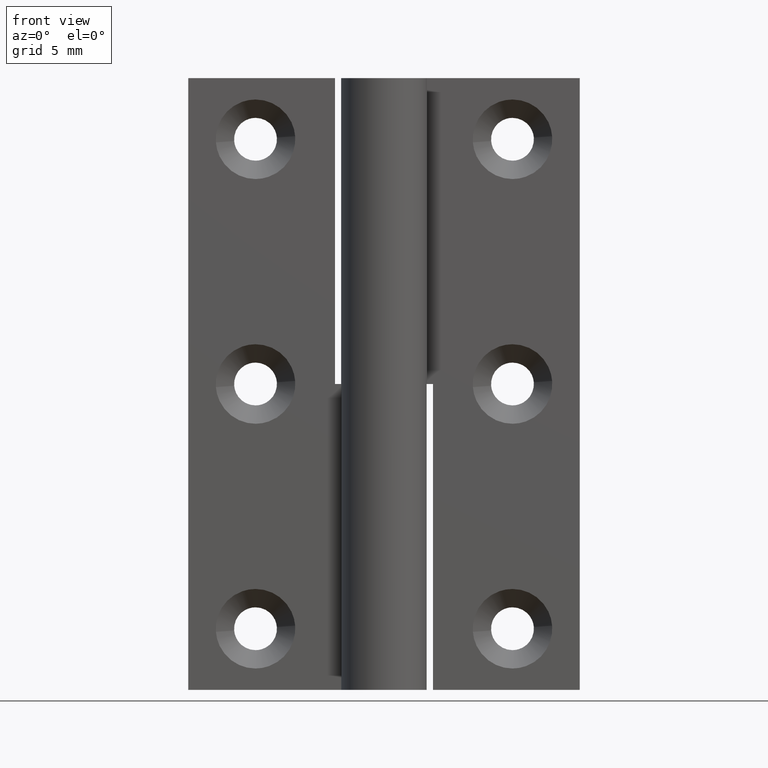
[diagram: clean part render]
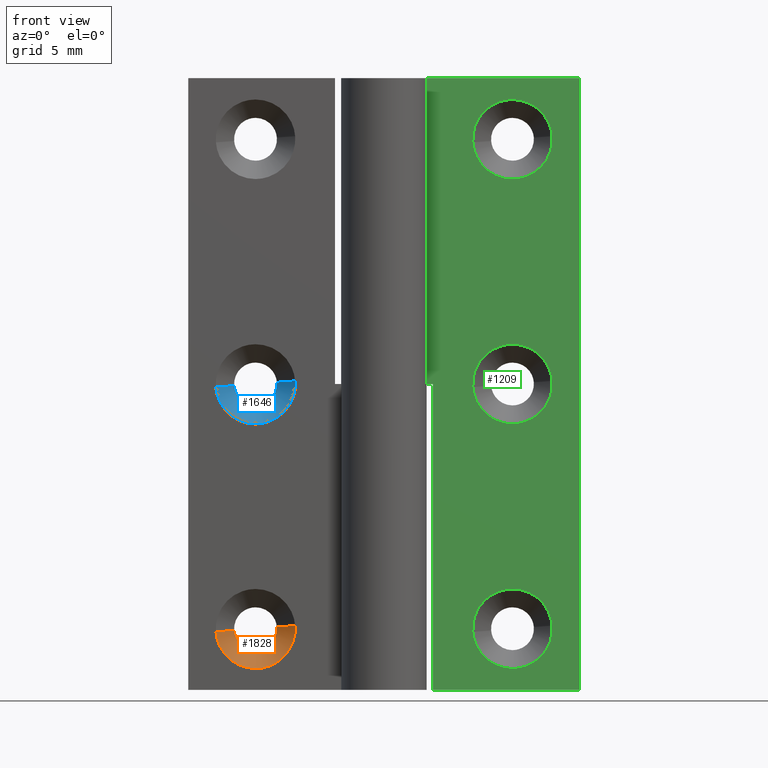
[diagram: same view with three faces highlighted in distinct colors, each labeled with its STEP entity id]
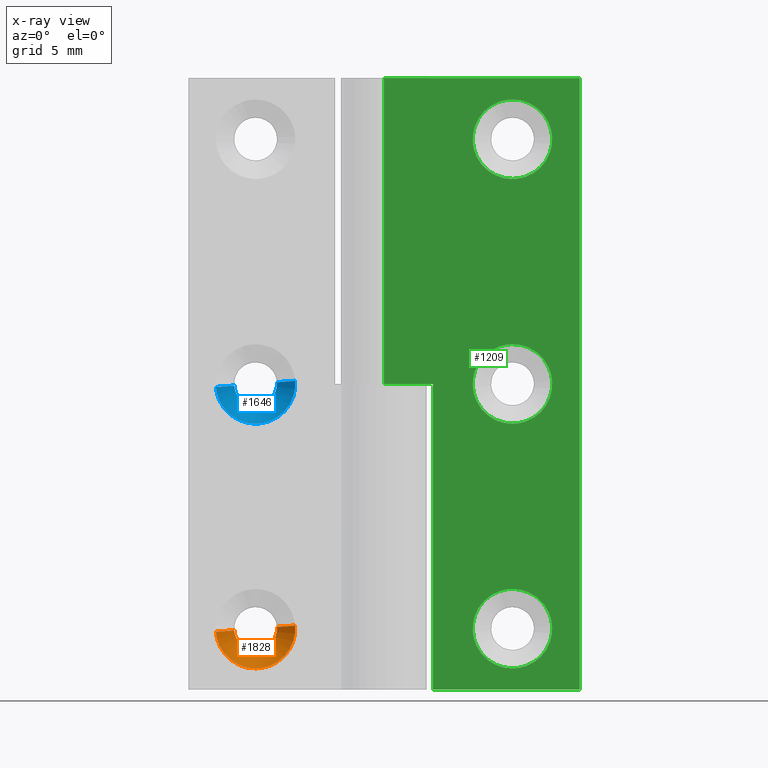
[diagram: x-ray of the same camera — body ghosted, the three highlighted faces saturated]
A machine part, front view with three faces highlighted in distinct colors.
The next image is the same camera in x-ray (body ghosted, the three faces saturated) — at least one of them is partly hidden behind the body in this view.
Their STEP definitions:

[orange] entity #1828 — the highlighted face is a freeform B-spline surface patch.
#1667=CARTESIAN_POINT('',(-7.260018665359869,1.999999999981076,5.254992061261848));
#1668=VERTEX_POINT('',#1667);
#1682=CARTESIAN_POINT('',(-13.739981334640129,1.999999999981076,4.745007938738153));
#1683=VERTEX_POINT('',#1682);
#1699=CARTESIAN_POINT('',(-12.244605334050179,3.499999999957236,4.862696582149795));
#1700=VERTEX_POINT('',#1699);
#1701=CARTESIAN_POINT('',(-12.244605334050179,3.499999999957236,4.862696582149795));
#1702=CARTESIAN_POINT('',(-13.739981334640129,1.999999999981076,4.745007938738153));
#1703=QUASI_UNIFORM_CURVE('',1,(#1701,#1702),.UNSPECIFIED.,.F.,.U.);
#1704=EDGE_CURVE('',#1700,#1683,#1703,.T.);
#1723=CARTESIAN_POINT('',(-8.755394665949822,3.499999999957236,5.137303417850206));
#1724=VERTEX_POINT('',#1723);
#1738=CARTESIAN_POINT('',(-8.755394665949822,3.499999999957236,5.137303417850206));
#1739=CARTESIAN_POINT('',(-7.260018665359869,1.999999999981076,5.254992061261848));
#1740=QUASI_UNIFORM_CURVE('',1,(#1738,#1739),.UNSPECIFIED.,.F.,.U.);
#1741=EDGE_CURVE('',#1724,#1668,#1740,.T.);
#1746=CARTESIAN_POINT('',(-12.207220934017981,3.537500000000001,4.865638798566065));
#1747=CARTESIAN_POINT('',(-12.072859732584046,3.537500000000000,3.158417864548084));
#1748=CARTESIAN_POINT('',(-10.365638798566060,3.537500000000001,3.292779065982019));
#1749=CARTESIAN_POINT('',(-8.658417864548085,3.537500000000000,3.427140267415955));
#1750=CARTESIAN_POINT('',(-8.792779065982019,3.537500000000001,5.134361201433936));
#1751=CARTESIAN_POINT('',(-13.778300344648031,1.961562500000000,4.741992167392462));
#1752=CARTESIAN_POINT('',(-13.520292512040498,1.961562500000000,1.463691822744428));
#1753=CARTESIAN_POINT('',(-10.241992167392461,1.961562500000000,1.721699655351965));
#1754=CARTESIAN_POINT('',(-6.963691822744428,1.961562500000000,1.979707487959503));
#1755=CARTESIAN_POINT('',(-7.221699655351966,1.961562500000000,5.258007832607538));
#1763=(BOUNDED_SURFACE()B_SPLINE_SURFACE(2,1,((#1746,#1751),(#1747,#1752),(#1748,#1753),(#1749,#1754),(#1750,#1755)),.UNSPECIFIED.,.F.,.F.,.U.)B_SPLINE_SURFACE_WITH_KNOTS((3,2,3),(2,2),(0.0,5.448461646065104,10.896923292130211),(0.0,2.228712185952353),.UNSPECIFIED.)GEOMETRIC_REPRESENTATION_ITEM()RATIONAL_B_SPLINE_SURFACE(((1.0,1.0),(0.707106781186548,0.707106781186548),(1.0,1.0),(0.707106781186548,0.707106781186548),(1.0,1.0)))REPRESENTATION_ITEM('')SURFACE());
#1764=CARTESIAN_POINT('',(-10.500000000000000,2.0,1.750000000000000));
#1765=VERTEX_POINT('',#1764);
#1766=CARTESIAN_POINT('',(-7.260018665359869,1.999999999981076,5.254992061261848));
#1767=CARTESIAN_POINT('',(-7.250000000000001,2.000000000000000,5.127692847920464));
#1768=CARTESIAN_POINT('',(-7.250000000000001,2.0,5.0));
#1769=CARTESIAN_POINT('',(-7.250000000000000,2.0,1.750000000000000));
#1770=CARTESIAN_POINT('',(-10.500000000000000,2.0,1.750000000000000));
#1778=(BOUNDED_CURVE()B_SPLINE_CURVE(2,(#1766,#1767,#1768,#1769,#1770),.UNSPECIFIED.,.F.,.U.)B_SPLINE_CURVE_WITH_KNOTS((3,2,3),(0.236331300617438,0.250000000000000,0.500000000000000),.UNSPECIFIED.)CURVE()GEOMETRIC_REPRESENTATION_ITEM()RATIONAL_B_SPLINE_CURVE((0.969723356139824,0.983986122563391,1.0,0.707106781186547,1.0))REPRESENTATION_ITEM(''));
#1779=EDGE_CURVE('',#1668,#1765,#1778,.T.);
#1780=ORIENTED_EDGE('',*,*,#1779,.F.);
#1781=ORIENTED_EDGE('',*,*,#1741,.F.);
#1782=CARTESIAN_POINT('',(-10.500000000000000,3.500000000000000,3.250000000000000));
#1783=VERTEX_POINT('',#1782);
#1784=CARTESIAN_POINT('',(-8.755394665949822,3.499999999957236,5.137303417850206));
#1785=CARTESIAN_POINT('',(-8.750000000000000,3.500000000000000,5.068757687588043));
#1786=CARTESIAN_POINT('',(-8.750000000000000,3.500000000000000,5.0));
#1787=CARTESIAN_POINT('',(-8.750000000000000,3.500000000000000,3.250000000000000));
#1788=CARTESIAN_POINT('',(-10.500000000000000,3.500000000000000,3.250000000000000));
#1796=(BOUNDED_CURVE()B_SPLINE_CURVE(2,(#1784,#1785,#1786,#1787,#1788),.UNSPECIFIED.,.F.,.U.)B_SPLINE_CURVE_WITH_KNOTS((3,2,3),(0.236331300569267,0.250000000000000,0.500000000000000),.UNSPECIFIED.)CURVE()GEOMETRIC_REPRESENTATION_ITEM()RATIONAL_B_SPLINE_CURVE((0.969723356039296,0.983986122506956,1.0,0.707106781186547,1.0))REPRESENTATION_ITEM(''));
#1797=EDGE_CURVE('',#1724,#1783,#1796,.T.);
#1798=ORIENTED_EDGE('',*,*,#1797,.T.);
#1799=CARTESIAN_POINT('',(-10.500000000000000,3.500000000000000,3.250000000000000));
#1800=CARTESIAN_POINT('',(-12.117683359800786,3.500000000000000,3.250000000000001));
#1801=CARTESIAN_POINT('',(-12.244605334050178,3.499999999957236,4.862696582149795));
#1809=(BOUNDED_CURVE()B_SPLINE_CURVE(2,(#1799,#1800,#1801),.UNSPECIFIED.,.F.,.U.)B_SPLINE_CURVE_WITH_KNOTS((3,3),(0.500000000000000,0.736331300569268),.UNSPECIFIED.)CURVE()GEOMETRIC_REPRESENTATION_ITEM()RATIONAL_B_SPLINE_CURVE((1.0,0.723120658679590,0.969723356039298))REPRESENTATION_ITEM(''));
#1810=EDGE_CURVE('',#1783,#1700,#1809,.T.);
#1811=ORIENTED_EDGE('',*,*,#1810,.T.);
#1812=ORIENTED_EDGE('',*,*,#1704,.T.);
#1813=CARTESIAN_POINT('',(-10.500000000000000,2.0,1.750000000000000));
#1814=CARTESIAN_POINT('',(-13.504269097619703,1.999999999999999,1.750000000000000));
#1815=CARTESIAN_POINT('',(-13.739981334640127,1.999999999981076,4.745007938738154));
#1823=(BOUNDED_CURVE()B_SPLINE_CURVE(2,(#1813,#1814,#1815),.UNSPECIFIED.,.F.,.U.)B_SPLINE_CURVE_WITH_KNOTS((3,3),(0.500000000000000,0.736331300617438),.UNSPECIFIED.)CURVE()GEOMETRIC_REPRESENTATION_ITEM()RATIONAL_B_SPLINE_CURVE((1.0,0.723120658623155,0.969723356139826))REPRESENTATION_ITEM(''));
#1824=EDGE_CURVE('',#1765,#1683,#1823,.T.);
#1825=ORIENTED_EDGE('',*,*,#1824,.F.);
#1826=EDGE_LOOP('',(#1780,#1781,#1798,#1811,#1812,#1825));
#1827=FACE_OUTER_BOUND('',#1826,.T.);
#1828=ADVANCED_FACE('',(#1827),#1763,.F.);

[blue] entity #1646 — the highlighted face is a freeform B-spline surface patch.
#1485=CARTESIAN_POINT('',(-7.260018665359869,1.999999999981076,25.254992061261849));
#1486=VERTEX_POINT('',#1485);
#1500=CARTESIAN_POINT('',(-13.739981334640129,1.999999999981076,24.745007938738159));
#1501=VERTEX_POINT('',#1500);
#1517=CARTESIAN_POINT('',(-12.244605334050179,3.499999999957235,24.862696582149798));
#1518=VERTEX_POINT('',#1517);
#1519=CARTESIAN_POINT('',(-12.244605334050179,3.499999999957235,24.862696582149798));
#1520=CARTESIAN_POINT('',(-13.739981334640129,1.999999999981076,24.745007938738159));
#1521=QUASI_UNIFORM_CURVE('',1,(#1519,#1520),.UNSPECIFIED.,.F.,.U.);
#1522=EDGE_CURVE('',#1518,#1501,#1521,.T.);
#1541=CARTESIAN_POINT('',(-8.755394665949826,3.499999999957236,25.137303417850209));
#1542=VERTEX_POINT('',#1541);
#1556=CARTESIAN_POINT('',(-8.755394665949826,3.499999999957236,25.137303417850209));
#1557=CARTESIAN_POINT('',(-7.260018665359869,1.999999999981076,25.254992061261849));
#1558=QUASI_UNIFORM_CURVE('',1,(#1556,#1557),.UNSPECIFIED.,.F.,.U.);
#1559=EDGE_CURVE('',#1542,#1486,#1558,.T.);
#1564=CARTESIAN_POINT('',(-12.207220934017981,3.537500000000001,24.865638798566060));
#1565=CARTESIAN_POINT('',(-12.072859732584046,3.537500000000000,23.158417864548074));
#1566=CARTESIAN_POINT('',(-10.365638798566060,3.537500000000001,23.292779065982021));
#1567=CARTESIAN_POINT('',(-8.658417864548085,3.537500000000000,23.427140267415954));
#1568=CARTESIAN_POINT('',(-8.792779065982019,3.537500000000001,25.134361201433940));
#1569=CARTESIAN_POINT('',(-13.778300344648031,1.961562500000000,24.741992167392461));
#1570=CARTESIAN_POINT('',(-13.520292512040498,1.961562500000000,21.463691822744437));
#1571=CARTESIAN_POINT('',(-10.241992167392461,1.961562500000000,21.721699655351969));
#1572=CARTESIAN_POINT('',(-6.963691822744428,1.961562500000000,21.979707487959502));
#1573=CARTESIAN_POINT('',(-7.221699655351966,1.961562500000000,25.258007832607539));
#1581=(BOUNDED_SURFACE()B_SPLINE_SURFACE(2,1,((#1564,#1569),(#1565,#1570),(#1566,#1571),(#1567,#1572),(#1568,#1573)),.UNSPECIFIED.,.F.,.F.,.U.)B_SPLINE_SURFACE_WITH_KNOTS((3,2,3),(2,2),(0.0,5.448461646065105,10.896923292130211),(0.0,2.228712185952353),.UNSPECIFIED.)GEOMETRIC_REPRESENTATION_ITEM()RATIONAL_B_SPLINE_SURFACE(((1.0,1.0),(0.707106781186548,0.707106781186548),(1.0,1.0),(0.707106781186548,0.707106781186548),(1.0,1.0)))REPRESENTATION_ITEM('')SURFACE());
#1582=CARTESIAN_POINT('',(-10.500000000000000,2.0,21.750000000000000));
#1583=VERTEX_POINT('',#1582);
#1584=CARTESIAN_POINT('',(-7.260018665359869,1.999999999981076,25.254992061261845));
#1585=CARTESIAN_POINT('',(-7.250000000000000,2.0,25.127692847920464));
#1586=CARTESIAN_POINT('',(-7.250000000000001,2.0,25.0));
#1587=CARTESIAN_POINT('',(-7.250000000000000,2.0,21.750000000000004));
#1588=CARTESIAN_POINT('',(-10.500000000000000,2.0,21.750000000000000));
#1596=(BOUNDED_CURVE()B_SPLINE_CURVE(2,(#1584,#1585,#1586,#1587,#1588),.UNSPECIFIED.,.F.,.U.)B_SPLINE_CURVE_WITH_KNOTS((3,2,3),(0.236331300617438,0.250000000000000,0.500000000000000),.UNSPECIFIED.)CURVE()GEOMETRIC_REPRESENTATION_ITEM()RATIONAL_B_SPLINE_CURVE((0.969723356139825,0.983986122563391,1.0,0.707106781186547,1.0))REPRESENTATION_ITEM(''));
#1597=EDGE_CURVE('',#1486,#1583,#1596,.T.);
#1598=ORIENTED_EDGE('',*,*,#1597,.F.);
#1599=ORIENTED_EDGE('',*,*,#1559,.F.);
#1600=CARTESIAN_POINT('',(-10.500000000000000,3.500000000000000,23.250000000000000));
#1601=VERTEX_POINT('',#1600);
#1602=CARTESIAN_POINT('',(-8.755394665949826,3.499999999957236,25.137303417850205));
#1603=CARTESIAN_POINT('',(-8.749999999999998,3.500000000000000,25.068757687588050));
#1604=CARTESIAN_POINT('',(-8.750000000000000,3.500000000000000,25.0));
#1605=CARTESIAN_POINT('',(-8.750000000000000,3.500000000000000,23.250000000000004));
#1606=CARTESIAN_POINT('',(-10.500000000000000,3.500000000000000,23.250000000000000));
#1614=(BOUNDED_CURVE()B_SPLINE_CURVE(2,(#1602,#1603,#1604,#1605,#1606),.UNSPECIFIED.,.F.,.U.)B_SPLINE_CURVE_WITH_KNOTS((3,2,3),(0.236331300569267,0.250000000000000,0.500000000000000),.UNSPECIFIED.)CURVE()GEOMETRIC_REPRESENTATION_ITEM()RATIONAL_B_SPLINE_CURVE((0.969723356039296,0.983986122506956,1.0,0.707106781186547,1.0))REPRESENTATION_ITEM(''));
#1615=EDGE_CURVE('',#1542,#1601,#1614,.T.);
#1616=ORIENTED_EDGE('',*,*,#1615,.T.);
#1617=CARTESIAN_POINT('',(-10.500000000000000,3.500000000000000,23.250000000000000));
#1618=CARTESIAN_POINT('',(-12.117683359800786,3.500000000000000,23.250000000000007));
#1619=CARTESIAN_POINT('',(-12.244605334050178,3.499999999957235,24.862696582149798));
#1627=(BOUNDED_CURVE()B_SPLINE_CURVE(2,(#1617,#1618,#1619),.UNSPECIFIED.,.F.,.U.)B_SPLINE_CURVE_WITH_KNOTS((3,3),(0.500000000000000,0.736331300569268),.UNSPECIFIED.)CURVE()GEOMETRIC_REPRESENTATION_ITEM()RATIONAL_B_SPLINE_CURVE((1.0,0.723120658679590,0.969723356039298))REPRESENTATION_ITEM(''));
#1628=EDGE_CURVE('',#1601,#1518,#1627,.T.);
#1629=ORIENTED_EDGE('',*,*,#1628,.T.);
#1630=ORIENTED_EDGE('',*,*,#1522,.T.);
#1631=CARTESIAN_POINT('',(-10.500000000000000,2.0,21.750000000000000));
#1632=CARTESIAN_POINT('',(-13.504269097619703,1.999999999999999,21.750000000000007));
#1633=CARTESIAN_POINT('',(-13.739981334640127,1.999999999981076,24.745007938738155));
#1641=(BOUNDED_CURVE()B_SPLINE_CURVE(2,(#1631,#1632,#1633),.UNSPECIFIED.,.F.,.U.)B_SPLINE_CURVE_WITH_KNOTS((3,3),(0.500000000000000,0.736331300617438),.UNSPECIFIED.)CURVE()GEOMETRIC_REPRESENTATION_ITEM()RATIONAL_B_SPLINE_CURVE((1.0,0.723120658623155,0.969723356139826))REPRESENTATION_ITEM(''));
#1642=EDGE_CURVE('',#1583,#1501,#1641,.T.);
#1643=ORIENTED_EDGE('',*,*,#1642,.F.);
#1644=EDGE_LOOP('',(#1598,#1599,#1616,#1629,#1630,#1643));
#1645=FACE_OUTER_BOUND('',#1644,.T.);
#1646=ADVANCED_FACE('',(#1645),#1581,.F.);

[green] entity #1209 — the highlighted face is a freeform B-spline surface patch.
#332=CARTESIAN_POINT('',(10.500000000000000,2.0,48.250000000000000));
#333=VERTEX_POINT('',#332);
#334=CARTESIAN_POINT('',(13.739981334640129,1.999999999981076,45.254992061261852));
#335=VERTEX_POINT('',#334);
#336=CARTESIAN_POINT('',(10.500000000000000,2.0,48.250000000000000));
#337=CARTESIAN_POINT('',(13.504269097619680,2.000000000000000,48.250000000000007));
#338=CARTESIAN_POINT('',(13.739981334640134,1.999999999981077,45.254992061261859));
#346=(BOUNDED_CURVE()B_SPLINE_CURVE(2,(#336,#337,#338),.UNSPECIFIED.,.F.,.U.)B_SPLINE_CURVE_WITH_KNOTS((3,3),(0.0,0.236331300617437),.UNSPECIFIED.)CURVE()GEOMETRIC_REPRESENTATION_ITEM()RATIONAL_B_SPLINE_CURVE((1.0,0.723120658623157,0.969723356139823))REPRESENTATION_ITEM(''));
#347=EDGE_CURVE('',#333,#335,#346,.T.);
#349=CARTESIAN_POINT('',(7.260018665359869,1.999999999981076,44.745007938738141));
#350=VERTEX_POINT('',#349);
#351=CARTESIAN_POINT('',(7.260018665359869,1.999999999981076,44.745007938738134));
#352=CARTESIAN_POINT('',(7.250000000000001,2.0,44.872307152079522));
#353=CARTESIAN_POINT('',(7.250000000000001,2.0,45.0));
#354=CARTESIAN_POINT('',(7.250000000000000,2.0,48.250000000000000));
#355=CARTESIAN_POINT('',(10.500000000000000,2.0,48.250000000000000));
#363=(BOUNDED_CURVE()B_SPLINE_CURVE(2,(#351,#352,#353,#354,#355),.UNSPECIFIED.,.F.,.U.)B_SPLINE_CURVE_WITH_KNOTS((3,2,3),(0.736331300617437,0.750000000000000,1.0),.UNSPECIFIED.)CURVE()GEOMETRIC_REPRESENTATION_ITEM()RATIONAL_B_SPLINE_CURVE((0.969723356139824,0.983986122563391,1.0,0.707106781186547,1.0))REPRESENTATION_ITEM(''));
#364=EDGE_CURVE('',#350,#333,#363,.T.);
#431=CARTESIAN_POINT('',(10.500000000000000,2.0,41.749999999999993));
#432=VERTEX_POINT('',#431);
#433=CARTESIAN_POINT('',(13.739981334640126,1.999999999981076,45.254992061261852));
#434=CARTESIAN_POINT('',(13.749999999999998,2.000000000000000,45.127692847920471));
#435=CARTESIAN_POINT('',(13.750000000000000,2.0,45.0));
#436=CARTESIAN_POINT('',(13.750000000000000,2.0,41.749999999999986));
#437=CARTESIAN_POINT('',(10.500000000000000,2.0,41.749999999999993));
#445=(BOUNDED_CURVE()B_SPLINE_CURVE(2,(#433,#434,#435,#436,#437),.UNSPECIFIED.,.F.,.U.)B_SPLINE_CURVE_WITH_KNOTS((3,2,3),(0.236331300617437,0.250000000000000,0.500000000000000),.UNSPECIFIED.)CURVE()GEOMETRIC_REPRESENTATION_ITEM()RATIONAL_B_SPLINE_CURVE((0.969723356139823,0.983986122563391,1.0,0.707106781186547,1.0))REPRESENTATION_ITEM(''));
#446=EDGE_CURVE('',#335,#432,#445,.T.);
#480=CARTESIAN_POINT('',(10.500000000000000,2.0,41.749999999999993));
#481=CARTESIAN_POINT('',(7.495730902380296,1.999999999999999,41.749999999999986));
#482=CARTESIAN_POINT('',(7.260018665359869,1.999999999981075,44.745007938738134));
#490=(BOUNDED_CURVE()B_SPLINE_CURVE(2,(#480,#481,#482),.UNSPECIFIED.,.F.,.U.)B_SPLINE_CURVE_WITH_KNOTS((3,3),(0.500000000000000,0.736331300617438),.UNSPECIFIED.)CURVE()GEOMETRIC_REPRESENTATION_ITEM()RATIONAL_B_SPLINE_CURVE((1.0,0.723120658623155,0.969723356139826))REPRESENTATION_ITEM(''));
#491=EDGE_CURVE('',#432,#350,#490,.T.);
#514=CARTESIAN_POINT('',(10.500000000000000,2.0,28.250000000000000));
#515=VERTEX_POINT('',#514);
#516=CARTESIAN_POINT('',(13.739981334640129,1.999999999981075,25.254992061261849));
#517=VERTEX_POINT('',#516);
#518=CARTESIAN_POINT('',(10.500000000000000,2.0,28.250000000000000));
#519=CARTESIAN_POINT('',(13.504269097619693,2.0,28.250000000000004));
#520=CARTESIAN_POINT('',(13.739981334640136,1.999999999981075,25.254992061261841));
#528=(BOUNDED_CURVE()B_SPLINE_CURVE(2,(#518,#519,#520),.UNSPECIFIED.,.F.,.U.)B_SPLINE_CURVE_WITH_KNOTS((3,3),(0.0,0.236331300617438),.UNSPECIFIED.)CURVE()GEOMETRIC_REPRESENTATION_ITEM()RATIONAL_B_SPLINE_CURVE((1.0,0.723120658623156,0.969723356139825))REPRESENTATION_ITEM(''));
#529=EDGE_CURVE('',#515,#517,#528,.T.);
#531=CARTESIAN_POINT('',(7.260018665359871,1.999999999981076,24.745007938738151));
#532=VERTEX_POINT('',#531);
#533=CARTESIAN_POINT('',(7.260018665359871,1.999999999981076,24.745007938738151));
#534=CARTESIAN_POINT('',(7.250000000000001,2.0,24.872307152079536));
#535=CARTESIAN_POINT('',(7.250000000000001,2.0,25.0));
#536=CARTESIAN_POINT('',(7.250000000000000,2.0,28.250000000000004));
#537=CARTESIAN_POINT('',(10.500000000000000,2.0,28.250000000000000));
#545=(BOUNDED_CURVE()B_SPLINE_CURVE(2,(#533,#534,#535,#536,#537),.UNSPECIFIED.,.F.,.U.)B_SPLINE_CURVE_WITH_KNOTS((3,2,3),(0.736331300617437,0.750000000000000,1.0),.UNSPECIFIED.)CURVE()GEOMETRIC_REPRESENTATION_ITEM()RATIONAL_B_SPLINE_CURVE((0.969723356139824,0.983986122563391,1.0,0.707106781186547,1.0))REPRESENTATION_ITEM(''));
#546=EDGE_CURVE('',#532,#515,#545,.T.);
#613=CARTESIAN_POINT('',(10.500000000000000,2.0,21.750000000000000));
#614=VERTEX_POINT('',#613);
#615=CARTESIAN_POINT('',(13.739981334640127,1.999999999981075,25.254992061261845));
#616=CARTESIAN_POINT('',(13.749999999999998,2.0,25.127692847920464));
#617=CARTESIAN_POINT('',(13.750000000000000,2.0,25.0));
#618=CARTESIAN_POINT('',(13.750000000000000,2.0,21.750000000000004));
#619=CARTESIAN_POINT('',(10.500000000000000,2.0,21.750000000000000));
#627=(BOUNDED_CURVE()B_SPLINE_CURVE(2,(#615,#616,#617,#618,#619),.UNSPECIFIED.,.F.,.U.)B_SPLINE_CURVE_WITH_KNOTS((3,2,3),(0.236331300617438,0.250000000000000,0.500000000000000),.UNSPECIFIED.)CURVE()GEOMETRIC_REPRESENTATION_ITEM()RATIONAL_B_SPLINE_CURVE((0.969723356139825,0.983986122563391,1.0,0.707106781186547,1.0))REPRESENTATION_ITEM(''));
#628=EDGE_CURVE('',#517,#614,#627,.T.);
#662=CARTESIAN_POINT('',(10.500000000000000,2.0,21.750000000000000));
#663=CARTESIAN_POINT('',(7.495730902380296,1.999999999999999,21.750000000000007));
#664=CARTESIAN_POINT('',(7.260018665359871,1.999999999981075,24.745007938738155));
#672=(BOUNDED_CURVE()B_SPLINE_CURVE(2,(#662,#663,#664),.UNSPECIFIED.,.F.,.U.)B_SPLINE_CURVE_WITH_KNOTS((3,3),(0.500000000000000,0.736331300617438),.UNSPECIFIED.)CURVE()GEOMETRIC_REPRESENTATION_ITEM()RATIONAL_B_SPLINE_CURVE((1.0,0.723120658623155,0.969723356139826))REPRESENTATION_ITEM(''));
#673=EDGE_CURVE('',#614,#532,#672,.T.);
#696=CARTESIAN_POINT('',(10.500000000000000,2.0,8.250000000000000));
#697=VERTEX_POINT('',#696);
#698=CARTESIAN_POINT('',(13.739981334640129,1.999999999981075,5.254992061261846));
#699=VERTEX_POINT('',#698);
#700=CARTESIAN_POINT('',(10.500000000000000,2.0,8.250000000000000));
#701=CARTESIAN_POINT('',(13.504269097619693,2.0,8.250000000000000));
#702=CARTESIAN_POINT('',(13.739981334640127,1.999999999981075,5.254992061261846));
#710=(BOUNDED_CURVE()B_SPLINE_CURVE(2,(#700,#701,#702),.UNSPECIFIED.,.F.,.U.)B_SPLINE_CURVE_WITH_KNOTS((3,3),(0.0,0.236331300617438),.UNSPECIFIED.)CURVE()GEOMETRIC_REPRESENTATION_ITEM()RATIONAL_B_SPLINE_CURVE((1.0,0.723120658623156,0.969723356139825))REPRESENTATION_ITEM(''));
#711=EDGE_CURVE('',#697,#699,#710,.T.);
#713=CARTESIAN_POINT('',(7.260018665359869,1.999999999981075,4.745007938738153));
#714=VERTEX_POINT('',#713);
#715=CARTESIAN_POINT('',(7.260018665359869,1.999999999981075,4.745007938738154));
#716=CARTESIAN_POINT('',(7.250000000000001,2.000000000000000,4.872307152079536));
#717=CARTESIAN_POINT('',(7.250000000000001,2.0,5.0));
#718=CARTESIAN_POINT('',(7.250000000000000,2.0,8.250000000000000));
#719=CARTESIAN_POINT('',(10.500000000000000,2.0,8.250000000000000));
#727=(BOUNDED_CURVE()B_SPLINE_CURVE(2,(#715,#716,#717,#718,#719),.UNSPECIFIED.,.F.,.U.)B_SPLINE_CURVE_WITH_KNOTS((3,2,3),(0.736331300617437,0.750000000000000,1.0),.UNSPECIFIED.)CURVE()GEOMETRIC_REPRESENTATION_ITEM()RATIONAL_B_SPLINE_CURVE((0.969723356139824,0.983986122563391,1.0,0.707106781186547,1.0))REPRESENTATION_ITEM(''));
#728=EDGE_CURVE('',#714,#697,#727,.T.);
#795=CARTESIAN_POINT('',(10.500000000000000,2.0,1.750000000000000));
#796=VERTEX_POINT('',#795);
#797=CARTESIAN_POINT('',(13.739981334640129,1.999999999981075,5.254992061261846));
#798=CARTESIAN_POINT('',(13.750000000000000,2.000000000000000,5.127692847920462));
#799=CARTESIAN_POINT('',(13.750000000000000,2.0,5.0));
#800=CARTESIAN_POINT('',(13.750000000000000,2.0,1.750000000000000));
#801=CARTESIAN_POINT('',(10.500000000000000,2.0,1.750000000000000));
#809=(BOUNDED_CURVE()B_SPLINE_CURVE(2,(#797,#798,#799,#800,#801),.UNSPECIFIED.,.F.,.U.)B_SPLINE_CURVE_WITH_KNOTS((3,2,3),(0.236331300617438,0.250000000000000,0.500000000000000),.UNSPECIFIED.)CURVE()GEOMETRIC_REPRESENTATION_ITEM()RATIONAL_B_SPLINE_CURVE((0.969723356139824,0.983986122563391,1.0,0.707106781186547,1.0))REPRESENTATION_ITEM(''));
#810=EDGE_CURVE('',#699,#796,#809,.T.);
#844=CARTESIAN_POINT('',(10.500000000000000,2.0,1.750000000000000));
#845=CARTESIAN_POINT('',(7.495730902380296,1.999999999999999,1.750000000000000));
#846=CARTESIAN_POINT('',(7.260018665359869,1.999999999981075,4.745007938738154));
#854=(BOUNDED_CURVE()B_SPLINE_CURVE(2,(#844,#845,#846),.UNSPECIFIED.,.F.,.U.)B_SPLINE_CURVE_WITH_KNOTS((3,3),(0.500000000000000,0.736331300617438),.UNSPECIFIED.)CURVE()GEOMETRIC_REPRESENTATION_ITEM()RATIONAL_B_SPLINE_CURVE((1.0,0.723120658623155,0.969723356139826))REPRESENTATION_ITEM(''));
#855=EDGE_CURVE('',#796,#714,#854,.T.);
#865=CARTESIAN_POINT('',(4.0,2.0,0.0));
#866=VERTEX_POINT('',#865);
#867=CARTESIAN_POINT('',(4.0,2.0,25.0));
#868=VERTEX_POINT('',#867);
#869=CARTESIAN_POINT('',(4.0,2.0,0.0));
#870=CARTESIAN_POINT('',(4.0,2.0,25.0));
#871=QUASI_UNIFORM_CURVE('',1,(#869,#870),.UNSPECIFIED.,.F.,.U.);
#872=EDGE_CURVE('',#866,#868,#871,.T.);
#930=CARTESIAN_POINT('',(0.0,2.0,25.0));
#931=VERTEX_POINT('',#930);
#932=CARTESIAN_POINT('',(4.0,2.0,25.0));
#933=CARTESIAN_POINT('',(0.0,2.0,25.0));
#934=QUASI_UNIFORM_CURVE('',1,(#932,#933),.UNSPECIFIED.,.F.,.U.);
#935=EDGE_CURVE('',#868,#931,#934,.T.);
#1001=CARTESIAN_POINT('',(0.0,2.0,50.0));
#1002=VERTEX_POINT('',#1001);
#1022=CARTESIAN_POINT('',(16.0,2.0,50.0));
#1023=VERTEX_POINT('',#1022);
#1024=CARTESIAN_POINT('',(16.0,2.0,50.0));
#1025=CARTESIAN_POINT('',(0.0,2.0,50.0));
#1026=QUASI_UNIFORM_CURVE('',1,(#1024,#1025),.UNSPECIFIED.,.F.,.U.);
#1027=EDGE_CURVE('',#1023,#1002,#1026,.T.);
#1050=CARTESIAN_POINT('',(16.0,2.0,0.0));
#1051=VERTEX_POINT('',#1050);
#1052=CARTESIAN_POINT('',(16.0,2.0,0.0));
#1053=CARTESIAN_POINT('',(16.0,2.0,50.0));
#1054=QUASI_UNIFORM_CURVE('',1,(#1052,#1053),.UNSPECIFIED.,.F.,.U.);
#1055=EDGE_CURVE('',#1051,#1023,#1054,.T.);
#1077=CARTESIAN_POINT('',(16.0,2.0,0.0));
#1078=CARTESIAN_POINT('',(4.0,2.0,0.0));
#1079=QUASI_UNIFORM_CURVE('',1,(#1077,#1078),.UNSPECIFIED.,.F.,.U.);
#1080=EDGE_CURVE('',#1051,#866,#1079,.T.);
#1136=CARTESIAN_POINT('',(0.0,2.0,25.0));
#1137=CARTESIAN_POINT('',(0.0,2.0,50.0));
#1138=QUASI_UNIFORM_CURVE('',1,(#1136,#1137),.UNSPECIFIED.,.F.,.U.);
#1139=EDGE_CURVE('',#931,#1002,#1138,.T.);
#1178=CARTESIAN_POINT('',(-0.799199968988895,2.0,-2.497499903090299));
#1179=CARTESIAN_POINT('',(-0.799199968988895,2.0,52.497501244194808));
#1180=CARTESIAN_POINT('',(16.799200398142339,2.0,-2.497499903090299));
#1181=CARTESIAN_POINT('',(16.799200398142339,2.0,52.497501244194808));
#1182=B_SPLINE_SURFACE_WITH_KNOTS('',1,1,((#1178,#1180),(#1179,#1181)),.UNSPECIFIED.,.F.,.F.,.U.,(2,2),(2,2),(0.0,54.995001147285109),(0.0,17.598400367131230),.UNSPECIFIED.);
#1183=ORIENTED_EDGE('',*,*,#935,.F.);
#1184=ORIENTED_EDGE('',*,*,#872,.F.);
#1185=ORIENTED_EDGE('',*,*,#1080,.F.);
#1186=ORIENTED_EDGE('',*,*,#1055,.T.);
#1187=ORIENTED_EDGE('',*,*,#1027,.T.);
#1188=ORIENTED_EDGE('',*,*,#1139,.F.);
#1189=EDGE_LOOP('',(#1183,#1184,#1185,#1186,#1187,#1188));
#1190=FACE_OUTER_BOUND('',#1189,.T.);
#1191=ORIENTED_EDGE('',*,*,#855,.T.);
#1192=ORIENTED_EDGE('',*,*,#728,.T.);
#1193=ORIENTED_EDGE('',*,*,#711,.T.);
#1194=ORIENTED_EDGE('',*,*,#810,.T.);
#1195=EDGE_LOOP('',(#1191,#1192,#1193,#1194));
#1196=FACE_BOUND('',#1195,.T.);
#1197=ORIENTED_EDGE('',*,*,#673,.T.);
#1198=ORIENTED_EDGE('',*,*,#546,.T.);
#1199=ORIENTED_EDGE('',*,*,#529,.T.);
#1200=ORIENTED_EDGE('',*,*,#628,.T.);
#1201=EDGE_LOOP('',(#1197,#1198,#1199,#1200));
#1202=FACE_BOUND('',#1201,.T.);
#1203=ORIENTED_EDGE('',*,*,#491,.T.);
#1204=ORIENTED_EDGE('',*,*,#364,.T.);
#1205=ORIENTED_EDGE('',*,*,#347,.T.);
#1206=ORIENTED_EDGE('',*,*,#446,.T.);
#1207=EDGE_LOOP('',(#1203,#1204,#1205,#1206));
#1208=FACE_BOUND('',#1207,.T.);
#1209=ADVANCED_FACE('',(#1190,#1196,#1202,#1208),#1182,.F.);